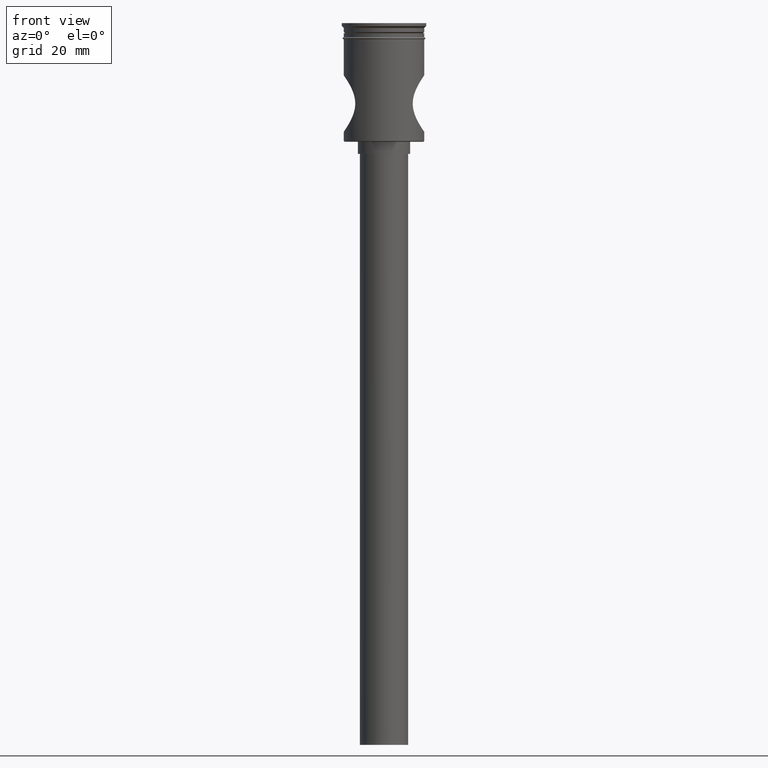
[diagram: clean part render]
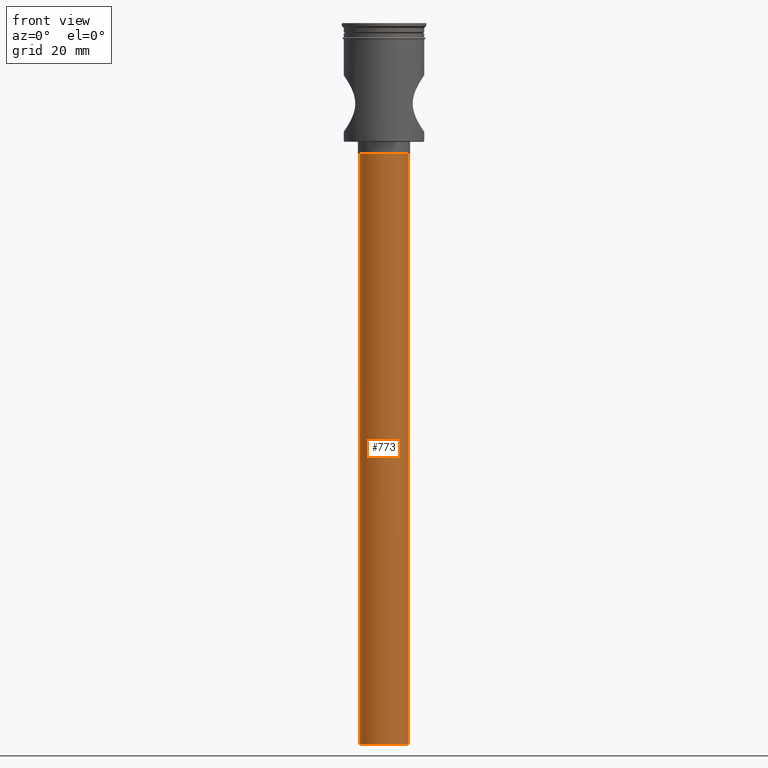
[diagram: same view with one face highlighted and labeled with its STEP entity id]
A machine part, front view. The second image highlights one B-rep face of the part: STEP entity #773.
In plain terms, the highlighted cylindrical surface (edge-blend (fillet) strip) has radius 6 mm, axis along (-0, -0, 1).
Its self-contained STEP definition (entity closure, byte-faithful):
#42 = ORIENTED_EDGE ( 'NONE', *, *, #726, .T. ) ;
#54 = CIRCLE ( 'NONE', #1413, 6.000000000000000888 ) ;
#101 = EDGE_CURVE ( 'NONE', #1046, #1506, #1459, .T. ) ;
#151 = VECTOR ( 'NONE', #1414, 1000.000000000000000 ) ;
#202 = FACE_OUTER_BOUND ( 'NONE', #1404, .T. ) ;
#214 = DIRECTION ( 'NONE',  ( 0.000000000000000000, 0.000000000000000000, -1.000000000000000000 ) ) ;
#235 = CARTESIAN_POINT ( 'NONE',  ( 6.000000000000000888, 0.000000000000000000, -179.5000000000000000 ) ) ;
#260 = EDGE_CURVE ( 'NONE', #1506, #893, #468, .T. ) ;
#262 = ORIENTED_EDGE ( 'NONE', *, *, #260, .F. ) ;
#294 = CARTESIAN_POINT ( 'NONE',  ( -6.000000000000000888, 7.347880794884120722E-16, -179.5000000000000000 ) ) ;
#306 = DIRECTION ( 'NONE',  ( -0.000000000000000000, -0.000000000000000000, 1.000000000000000000 ) ) ;
#366 = ORIENTED_EDGE ( 'NONE', *, *, #101, .F. ) ;
#407 = VERTEX_POINT ( 'NONE', #656 ) ;
#434 = DIRECTION ( 'NONE',  ( 1.000000000000000000, 0.000000000000000000, 0.000000000000000000 ) ) ;
#462 = CARTESIAN_POINT ( 'NONE',  ( 0.000000000000000000, 0.000000000000000000, -179.5000000000000000 ) ) ;
#468 = LINE ( 'NONE', #948, #151 ) ;
#510 = CARTESIAN_POINT ( 'NONE',  ( 6.000000000000000888, 0.000000000000000000, -179.5000000000000000 ) ) ;
#569 = DIRECTION ( 'NONE',  ( -0.000000000000000000, -0.000000000000000000, 1.000000000000000000 ) ) ;
#575 = CARTESIAN_POINT ( 'NONE',  ( 0.000000000000000000, 0.000000000000000000, -32.50000000000000000 ) ) ;
#579 = AXIS2_PLACEMENT_3D ( 'NONE', #909, #569, #434 ) ;
#656 = CARTESIAN_POINT ( 'NONE',  ( 6.000000000000000888, 0.000000000000000000, -32.50000000000000000 ) ) ;
#689 = DIRECTION ( 'NONE',  ( -1.000000000000000000, 0.000000000000000000, 0.000000000000000000 ) ) ;
#726 = EDGE_CURVE ( 'NONE', #1046, #407, #1107, .T. ) ;
#773 = ADVANCED_FACE ( 'NONE', ( #202 ), #923, .T. ) ;
#814 = ORIENTED_EDGE ( 'NONE', *, *, #1062, .T. ) ;
#893 = VERTEX_POINT ( 'NONE', #900 ) ;
#900 = CARTESIAN_POINT ( 'NONE',  ( -6.000000000000000888, 7.347880794884120722E-16, -32.50000000000000000 ) ) ;
#909 = CARTESIAN_POINT ( 'NONE',  ( 0.000000000000000000, 0.000000000000000000, -179.5000000000000000 ) ) ;
#919 = DIRECTION ( 'NONE',  ( 0.000000000000000000, 0.000000000000000000, -1.000000000000000000 ) ) ;
#923 = CYLINDRICAL_SURFACE ( 'NONE', #579, 6.000000000000000888 ) ;
#948 = CARTESIAN_POINT ( 'NONE',  ( -6.000000000000000888, 7.347880794884120722E-16, -179.5000000000000000 ) ) ;
#1046 = VERTEX_POINT ( 'NONE', #235 ) ;
#1062 = EDGE_CURVE ( 'NONE', #407, #893, #54, .T. ) ;
#1107 = LINE ( 'NONE', #510, #1363 ) ;
#1123 = AXIS2_PLACEMENT_3D ( 'NONE', #462, #919, #689 ) ;
#1296 = DIRECTION ( 'NONE',  ( -1.000000000000000000, 0.000000000000000000, 0.000000000000000000 ) ) ;
#1363 = VECTOR ( 'NONE', #306, 1000.000000000000000 ) ;
#1404 = EDGE_LOOP ( 'NONE', ( #262, #366, #42, #814 ) ) ;
#1413 = AXIS2_PLACEMENT_3D ( 'NONE', #575, #214, #1296 ) ;
#1414 = DIRECTION ( 'NONE',  ( -0.000000000000000000, -0.000000000000000000, 1.000000000000000000 ) ) ;
#1459 = CIRCLE ( 'NONE', #1123, 6.000000000000000888 ) ;
#1506 = VERTEX_POINT ( 'NONE', #294 ) ;